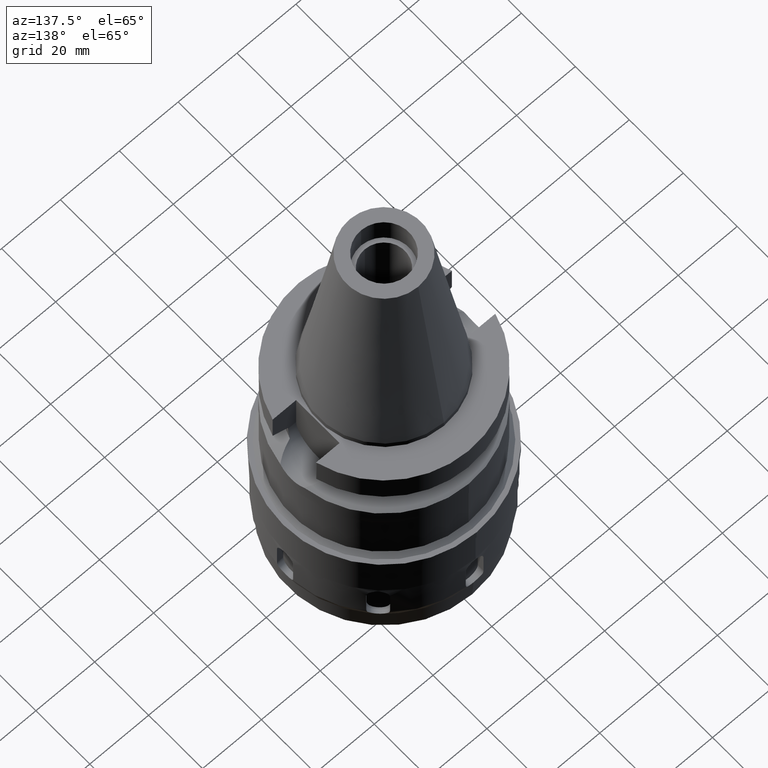
[diagram: clean part render]
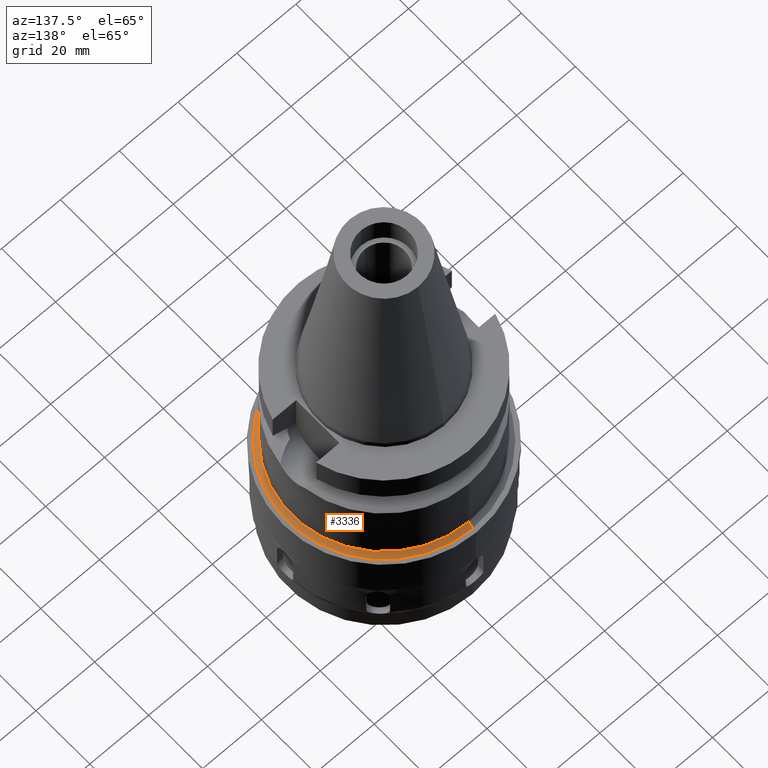
[diagram: same view with one face highlighted and labeled with its STEP entity id]
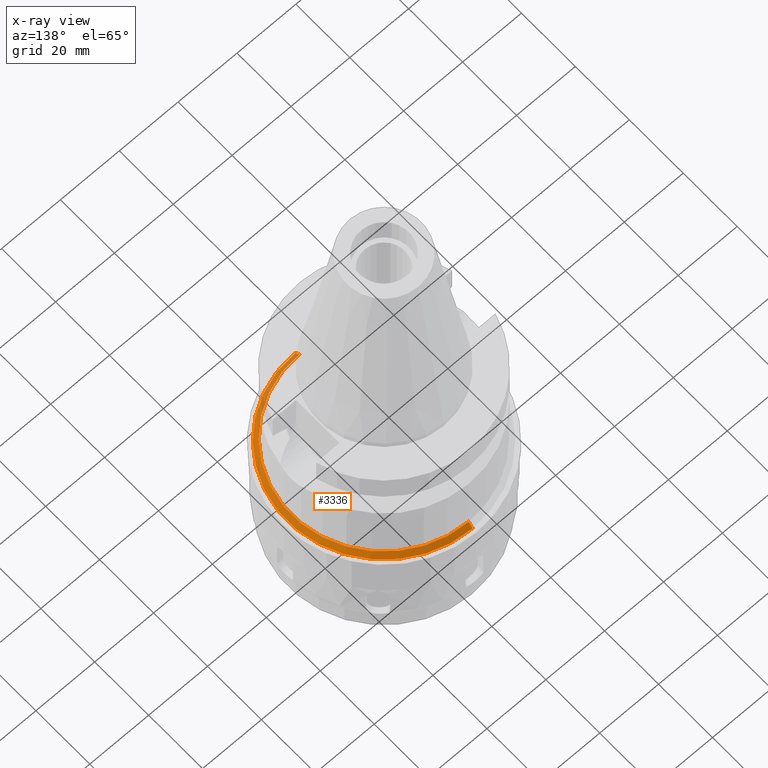
[diagram: x-ray of the same camera — body ghosted, the highlighted face saturated]
A machine part, auxiliary view. The second image highlights one B-rep face of the part: STEP entity #3336.
The next image is the same camera in x-ray: the body ghosted, the highlighted face saturated — about 13% of this face is hidden behind the body in this view.
In plain terms, the highlighted conical surface has half-angle 45 deg.
Its self-contained STEP definition (entity closure, byte-faithful):
#676=DIRECTION('',(0.E0,7.071067811865E-1,-7.071067811866E-1));
#677=VECTOR('',#676,2.121320343560E0);
#678=CARTESIAN_POINT('',(0.E0,3.14E1,-4.44E1));
#679=LINE('',#678,#677);
#683=CARTESIAN_POINT('',(0.E0,0.E0,-4.44E1));
#684=DIRECTION('',(0.E0,0.E0,1.E0));
#685=DIRECTION('',(0.E0,-1.E0,0.E0));
#686=AXIS2_PLACEMENT_3D('',#683,#684,#685);
#699=DIRECTION('',(0.E0,-7.071067811866E-1,-7.071067811865E-1));
#700=VECTOR('',#699,2.121320343560E0);
#701=CARTESIAN_POINT('',(0.E0,-3.14E1,-4.44E1));
#702=LINE('',#701,#700);
#722=CARTESIAN_POINT('',(0.E0,0.E0,-4.59E1));
#723=DIRECTION('',(0.E0,0.E0,1.E0));
#724=DIRECTION('',(0.E0,-1.E0,0.E0));
#725=AXIS2_PLACEMENT_3D('',#722,#723,#724);
#2688=CARTESIAN_POINT('',(0.E0,-3.29E1,-4.59E1));
#2689=CARTESIAN_POINT('',(0.E0,3.29E1,-4.59E1));
#2690=VERTEX_POINT('',#2688);
#2691=VERTEX_POINT('',#2689);
#2692=CARTESIAN_POINT('',(0.E0,3.14E1,-4.44E1));
#2693=VERTEX_POINT('',#2692);
#2694=CARTESIAN_POINT('',(0.E0,-3.14E1,-4.44E1));
#2695=VERTEX_POINT('',#2694);
#3322=CARTESIAN_POINT('',(0.E0,0.E0,-4.515E1));
#3323=DIRECTION('',(0.E0,0.E0,-1.E0));
#3324=DIRECTION('',(0.E0,-1.E0,0.E0));
#3325=AXIS2_PLACEMENT_3D('',#3322,#3323,#3324);
#3326=CONICAL_SURFACE('',#3325,3.215E1,4.5E1);
#3328=ORIENTED_EDGE('',*,*,#3327,.T.);
#3330=ORIENTED_EDGE('',*,*,#3329,.F.);
#3332=ORIENTED_EDGE('',*,*,#3331,.F.);
#3333=ORIENTED_EDGE('',*,*,#3315,.T.);
#3334=EDGE_LOOP('',(#3328,#3330,#3332,#3333));
#3335=FACE_OUTER_BOUND('',#3334,.F.);
#687=CIRCLE('',#686,3.14E1);
#726=CIRCLE('',#725,3.29E1);
#3315=EDGE_CURVE('',#2695,#2693,#687,.T.);
#3327=EDGE_CURVE('',#2693,#2691,#679,.T.);
#3329=EDGE_CURVE('',#2690,#2691,#726,.T.);
#3331=EDGE_CURVE('',#2695,#2690,#702,.T.);
#3336=ADVANCED_FACE('',(#3335),#3326,.T.);